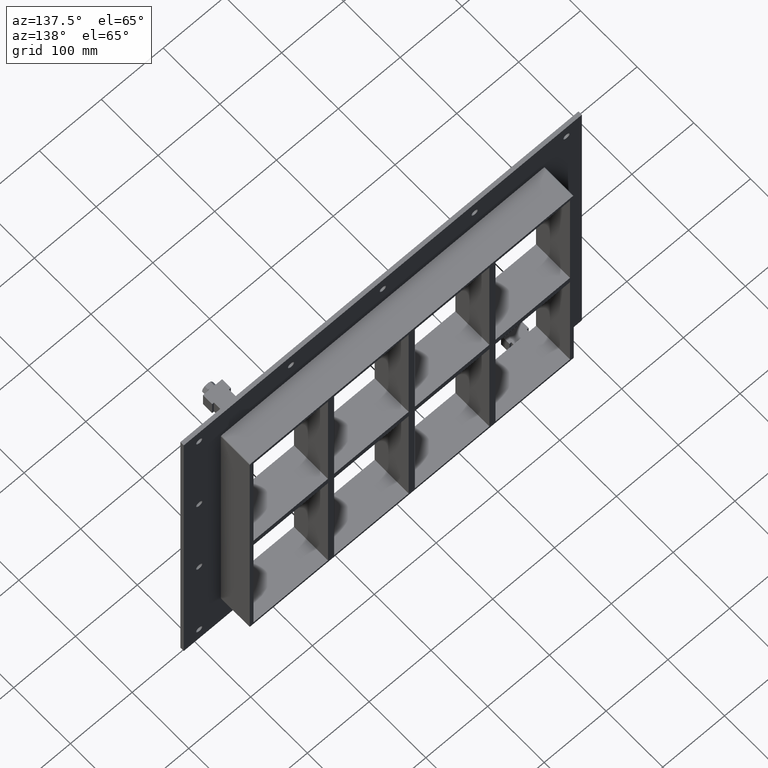
[diagram: clean part render]
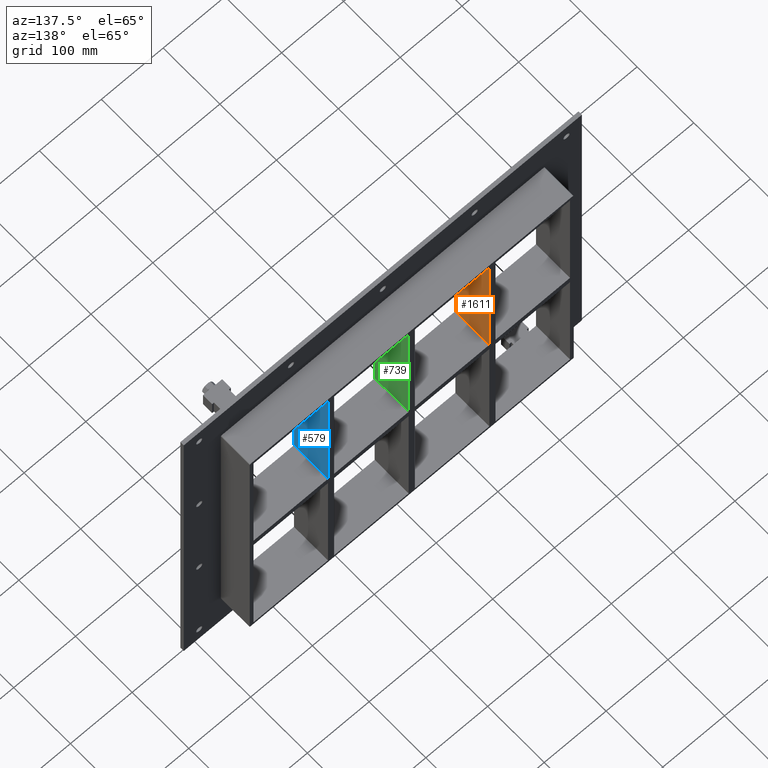
[diagram: same view with three faces highlighted in distinct colors, each labeled with its STEP entity id]
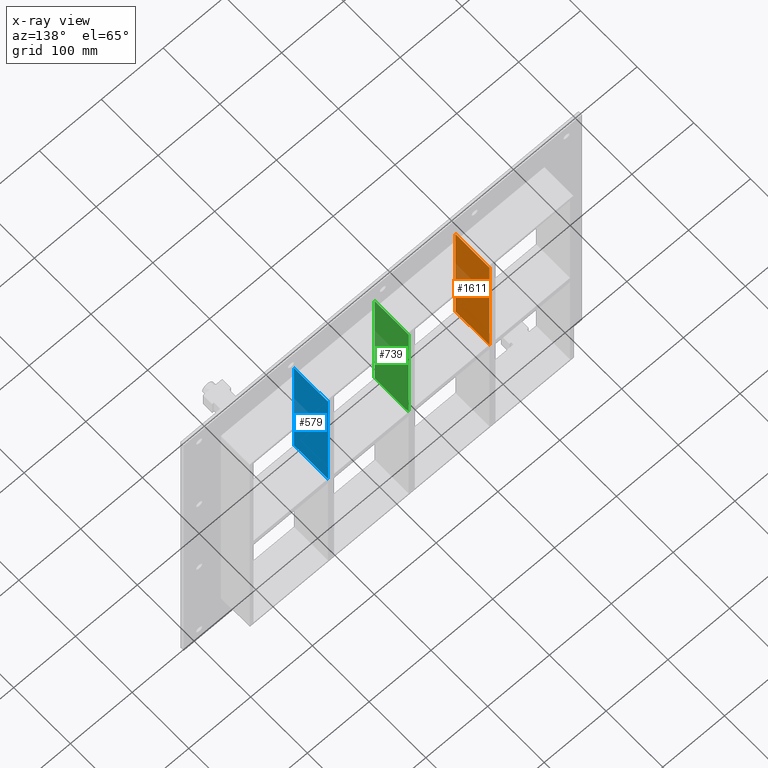
[diagram: x-ray of the same camera — body ghosted, the three highlighted faces saturated]
A machine part, auxiliary view with three faces highlighted in distinct colors.
The next image is the same camera in x-ray (body ghosted, the three faces saturated) — at least one of them is partly hidden behind the body in this view.
Their STEP definitions:

[orange] entity #1611 — the highlighted planar face has unit normal (1, 0, 0).
#984=CARTESIAN_POINT('',(-125.49999999999272,-3.0,6.000000000000227));
#985=VERTEX_POINT('',#984);
#992=CARTESIAN_POINT('',(-125.49999999999272,-3.0,224.00000000000003));
#993=VERTEX_POINT('',#992);
#994=CARTESIAN_POINT('',(-125.49999999999272,-3.0,224.00000000000003));
#995=DIRECTION('',(0.0,0.0,-1.0));
#996=VECTOR('',#995,217.9999999999998);
#997=LINE('',#994,#996);
#998=EDGE_CURVE('',#993,#985,#997,.T.);
#1369=CARTESIAN_POINT('',(-125.49999999999272,57.0,224.00000000000003));
#1370=VERTEX_POINT('',#1369);
#1377=CARTESIAN_POINT('',(-125.49999999999272,57.0,6.000000000000227));
#1378=VERTEX_POINT('',#1377);
#1379=CARTESIAN_POINT('',(-125.49999999999272,57.0,224.00000000000003));
#1380=DIRECTION('',(0.0,0.0,-1.0));
#1381=VECTOR('',#1380,217.9999999999998);
#1382=LINE('',#1379,#1381);
#1383=EDGE_CURVE('',#1370,#1378,#1382,.T.);
#1401=CARTESIAN_POINT('',(-125.49999999999272,-3.0,6.000000000000227));
#1402=DIRECTION('',(0.0,1.0,0.0));
#1403=VECTOR('',#1402,60.0);
#1404=LINE('',#1401,#1403);
#1405=EDGE_CURVE('',#985,#1378,#1404,.T.);
#1435=CARTESIAN_POINT('',(-125.49999999999272,-3.0,224.00000000000006));
#1436=DIRECTION('',(0.0,1.0,0.0));
#1437=VECTOR('',#1436,60.000000000000007);
#1438=LINE('',#1435,#1437);
#1439=EDGE_CURVE('',#993,#1370,#1438,.T.);
#1600=CARTESIAN_POINT('',(-125.49999999999272,-3.0,224.00000000000003));
#1601=DIRECTION('',(1.0,0.0,0.0));
#1602=DIRECTION('',(0.0,0.0,-1.0));
#1603=AXIS2_PLACEMENT_3D('',#1600,#1601,#1602);
#1604=PLANE('',#1603);
#1605=ORIENTED_EDGE('',*,*,#1405,.T.);
#1606=ORIENTED_EDGE('',*,*,#1383,.F.);
#1607=ORIENTED_EDGE('',*,*,#1439,.F.);
#1608=ORIENTED_EDGE('',*,*,#998,.T.);
#1609=EDGE_LOOP('',(#1605,#1606,#1607,#1608));
#1610=FACE_OUTER_BOUND('',#1609,.T.);
#1611=ADVANCED_FACE('',(#1610),#1604,.T.);

[blue] entity #579 — the highlighted planar face has unit normal (1, 0, 0).
#540=CARTESIAN_POINT('',(135.50000000000728,-3.0,224.00000000000003));
#541=DIRECTION('',(1.0,0.0,0.0));
#542=DIRECTION('',(0.0,0.0,-1.0));
#543=AXIS2_PLACEMENT_3D('',#540,#541,#542);
#544=PLANE('',#543);
#545=CARTESIAN_POINT('',(135.50000000000728,57.0,6.000000000000227));
#546=VERTEX_POINT('',#545);
#547=CARTESIAN_POINT('',(135.50000000000728,-3.0,6.000000000000227));
#548=VERTEX_POINT('',#547);
#549=CARTESIAN_POINT('',(135.50000000000728,57.0,6.000000000000227));
#550=DIRECTION('',(0.0,-1.0,0.0));
#551=VECTOR('',#550,60.0);
#552=LINE('',#549,#551);
#553=EDGE_CURVE('',#546,#548,#552,.T.);
#554=ORIENTED_EDGE('',*,*,#553,.F.);
#555=CARTESIAN_POINT('',(135.50000000000728,57.0,224.00000000000003));
#556=VERTEX_POINT('',#555);
#557=CARTESIAN_POINT('',(135.50000000000728,57.0,224.00000000000003));
#558=DIRECTION('',(0.0,0.0,-1.0));
#559=VECTOR('',#558,217.9999999999998);
#560=LINE('',#557,#559);
#561=EDGE_CURVE('',#556,#546,#560,.T.);
#562=ORIENTED_EDGE('',*,*,#561,.F.);
#563=CARTESIAN_POINT('',(135.50000000000728,-3.0,224.00000000000003));
#564=VERTEX_POINT('',#563);
#565=CARTESIAN_POINT('',(135.50000000000728,-3.0,224.00000000000006));
#566=DIRECTION('',(0.0,1.0,0.0));
#567=VECTOR('',#566,60.000000000000007);
#568=LINE('',#565,#567);
#569=EDGE_CURVE('',#564,#556,#568,.T.);
#570=ORIENTED_EDGE('',*,*,#569,.F.);
#571=CARTESIAN_POINT('',(135.50000000000728,-3.0,224.00000000000003));
#572=DIRECTION('',(0.0,0.0,-1.0));
#573=VECTOR('',#572,217.9999999999998);
#574=LINE('',#571,#573);
#575=EDGE_CURVE('',#564,#548,#574,.T.);
#576=ORIENTED_EDGE('',*,*,#575,.T.);
#577=EDGE_LOOP('',(#554,#562,#570,#576));
#578=FACE_OUTER_BOUND('',#577,.T.);
#579=ADVANCED_FACE('',(#578),#544,.T.);

[green] entity #739 — the highlighted planar face has unit normal (1, 0, 0).
#700=CARTESIAN_POINT('',(5.000000000007283,-3.0,224.00000000000003));
#701=DIRECTION('',(1.0,0.0,0.0));
#702=DIRECTION('',(0.0,0.0,-1.0));
#703=AXIS2_PLACEMENT_3D('',#700,#701,#702);
#704=PLANE('',#703);
#705=CARTESIAN_POINT('',(5.000000000007283,57.0,6.000000000000227));
#706=VERTEX_POINT('',#705);
#707=CARTESIAN_POINT('',(5.000000000007283,-3.0,6.000000000000227));
#708=VERTEX_POINT('',#707);
#709=CARTESIAN_POINT('',(5.000000000007283,57.0,6.000000000000227));
#710=DIRECTION('',(0.0,-1.0,0.0));
#711=VECTOR('',#710,60.0);
#712=LINE('',#709,#711);
#713=EDGE_CURVE('',#706,#708,#712,.T.);
#714=ORIENTED_EDGE('',*,*,#713,.F.);
#715=CARTESIAN_POINT('',(5.000000000007283,57.0,224.00000000000003));
#716=VERTEX_POINT('',#715);
#717=CARTESIAN_POINT('',(5.000000000007283,57.0,224.00000000000003));
#718=DIRECTION('',(0.0,0.0,-1.0));
#719=VECTOR('',#718,217.9999999999998);
#720=LINE('',#717,#719);
#721=EDGE_CURVE('',#716,#706,#720,.T.);
#722=ORIENTED_EDGE('',*,*,#721,.F.);
#723=CARTESIAN_POINT('',(5.000000000007283,-3.0,224.00000000000003));
#724=VERTEX_POINT('',#723);
#725=CARTESIAN_POINT('',(5.000000000007283,-3.0,224.00000000000006));
#726=DIRECTION('',(0.0,1.0,0.0));
#727=VECTOR('',#726,60.000000000000007);
#728=LINE('',#725,#727);
#729=EDGE_CURVE('',#724,#716,#728,.T.);
#730=ORIENTED_EDGE('',*,*,#729,.F.);
#731=CARTESIAN_POINT('',(5.000000000007283,-3.0,224.00000000000003));
#732=DIRECTION('',(0.0,0.0,-1.0));
#733=VECTOR('',#732,217.9999999999998);
#734=LINE('',#731,#733);
#735=EDGE_CURVE('',#724,#708,#734,.T.);
#736=ORIENTED_EDGE('',*,*,#735,.T.);
#737=EDGE_LOOP('',(#714,#722,#730,#736));
#738=FACE_OUTER_BOUND('',#737,.T.);
#739=ADVANCED_FACE('',(#738),#704,.T.);